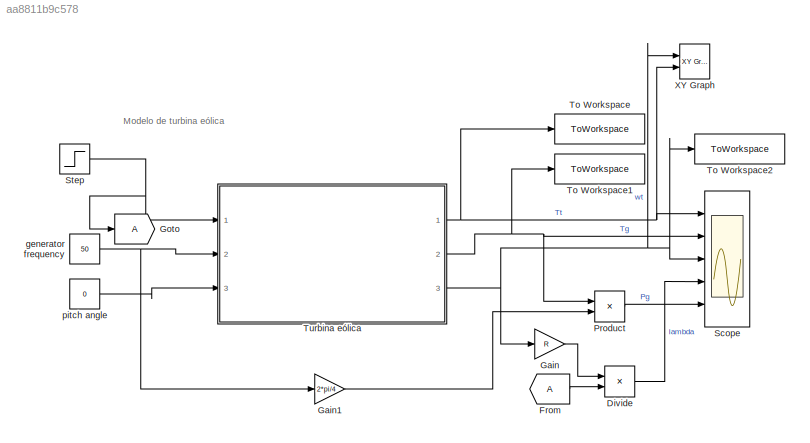
MODEL slx_aa8811b9c578
KIND model
CONFIG AbsTol = auto
CONFIG EnableMultiTasking = off
CONFIG FixedStep = auto
CONFIG MaxStep = auto
CONFIG MinStep = auto
CONFIG RelTol = 1e-3
CONFIG SampleTimeConstraint = Unconstrained
CONFIG Solver = VariableStepAuto
CONFIG SolverName = VariableStepAuto
CONFIG StartTime = 0.0
CONFIG StopTime = 5
BLOCK [Product] Divide
  Inputs = */
  Ports = [2, 1]
BLOCK [From] From
BLOCK [Gain] Gain
  Gain = R
BLOCK [Gain] Gain1
  Gain = 2*pi/4
BLOCK [Goto] Goto
BLOCK [Product] Product
  Ports = [2, 1]
BLOCK [Scope] Scope
  Floating = off
  NumInputPorts = 5
  Ports = [5]
  ScopeSpecificationString = Simulink.scopes.TimeScopeBlockCfg('CurrentConfiguration', extmgr.ConfigurationSet(extmgr.Configuration('Core','General UI',true),extmgr.Configuration('Core','Source UI',true),extmgr.Configuration('Sources','WiredSimulink',true),extmgr.Configuration('Visuals','Time Domain',true,'SerializedDisplays',{struct('MinYLimReal','-22624.94109','MaxYLimReal','203624.4698','YLabelReal','','MinYLimMag','   0.0...<+6095ch>
BLOCK [Step] Step
  After = 5
  Before = 5
  SampleTime = 0
BLOCK [ToWorkspace] To Workspace
  FixptAsFi = on
  MaxDataPoints = inf
  Ports = [1]
  SampleTime = -1
  Save2DSignal = 2-D array (concatenate along first dimension)
  VariableName = Tt
BLOCK [ToWorkspace] To Workspace1
  FixptAsFi = on
  MaxDataPoints = inf
  Ports = [1]
  SampleTime = -1
  Save2DSignal = 2-D array (concatenate along first dimension)
  VariableName = Tg
BLOCK [ToWorkspace] To Workspace2
  FixptAsFi = on
  MaxDataPoints = inf
  Ports = [1]
  SampleTime = -1
  Save2DSignal = 2-D array (concatenate along first dimension)
  VariableName = wt
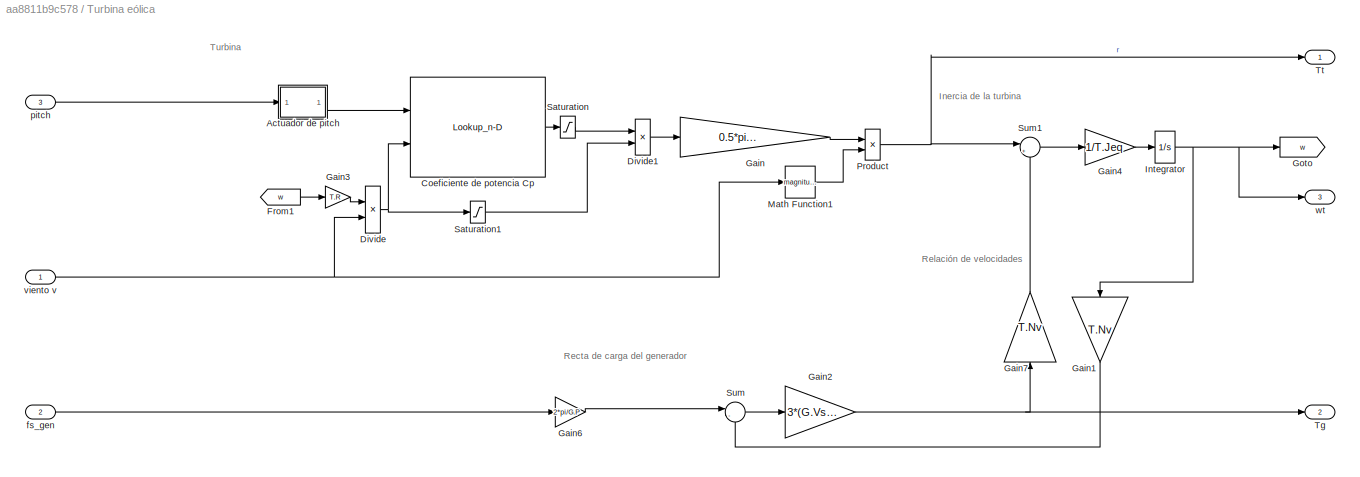
BLOCK [SubSystem] Turbina eólica
  Ports = [3, 3]
  RequestExecContextInheritance = off
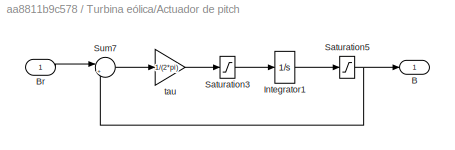
BLOCK [SubSystem] Turbina eólica/Actuador de pitch
  Ports = [1, 1]
  RequestExecContextInheritance = off
BLOCK [Outport] Turbina eólica/Actuador de pitch/B
BLOCK [Inport] Turbina eólica/Actuador de pitch/Br
BLOCK [Integrator] Turbina eólica/Actuador de pitch/Integrator1
  Ports = [1, 1]
BLOCK [Saturate] Turbina eólica/Actuador de pitch/Saturation3
  LowerLimit = -10
  UpperLimit = 10
BLOCK [Saturate] Turbina eólica/Actuador de pitch/Saturation5
  LowerLimit = 0
  UpperLimit = 30
BLOCK [Sum] Turbina eólica/Actuador de pitch/Sum7
  Inputs = |+-
  Ports = [2, 1]
BLOCK [Gain] Turbina eólica/Actuador de pitch/tau
  Gain = 1/(2*pi)
BLOCK [Lookup_n-D] Turbina eólica/Coeficiente de potencia Cp
  BreakpointsForDimension1 = T.pitch
  BreakpointsForDimension2 = T.tsr
  InternalRulePriority = Speed
  InterpMethod = Cubic spline
  OutMax = [0.5]
  OutMin = [0]
  Ports = [2, 1]
  RndMeth = Simplest
  SaturateOnIntegerOverflow = on
  Table = T.Cp
BLOCK [Product] Turbina eólica/Divide
  Inputs = */
  Ports = [2, 1]
BLOCK [Product] Turbina eólica/Divide1
  Inputs = */
  Ports = [2, 1]
BLOCK [From] Turbina eólica/From1
  GotoTag = w
BLOCK [Gain] Turbina eólica/Gain
  Gain = 0.5*pi*T.rho*T.R^3
BLOCK [Gain] Turbina eólica/Gain1
  Gain = T.Nv
  NameLocation = left
BLOCK [Gain] Turbina eólica/Gain2
  Gain = 3*(G.Vsn/G.wsn)^2/G.Rr
BLOCK [Gain] Turbina eólica/Gain3
  Gain = T.R
BLOCK [Gain] Turbina eólica/Gain4
  Gain = 1/T.Jeq
BLOCK [Gain] Turbina eólica/Gain6
  Gain = 2*pi/G.P
BLOCK [Gain] Turbina eólica/Gain7
  Gain = T.Nv
  NameLocation = right
BLOCK [Goto] Turbina eólica/Goto
  GotoTag = w
BLOCK [Integrator] Turbina eólica/Integrator
  InitialCondition = G.wsn/T.Nv
  Ports = [1, 1]
BLOCK [Math] Turbina eólica/Math Function1
  Operator = magnitude^2
  Ports = [1, 1]
  SignedPower = on
BLOCK [Product] Turbina eólica/Product
  Ports = [2, 1]
BLOCK [Saturate] Turbina eólica/Saturation
  LowerLimit = 0
BLOCK [Saturate] Turbina eólica/Saturation1
  LowerLimit = 0.1
  UpperLimit = inf
BLOCK [Sum] Turbina eólica/Sum
  Inputs = |-+
  Ports = [2, 1]
BLOCK [Sum] Turbina eólica/Sum1
  Inputs = |+-
  Ports = [2, 1]
BLOCK [Outport] Turbina eólica/Tg
  Port = 2
BLOCK [Outport] Turbina eólica/Tt
BLOCK [Inport] Turbina eólica/fs_gen
  Port = 2
BLOCK [Inport] Turbina eólica/pitch
  Port = 3
BLOCK [Inport] Turbina eólica/viento v
BLOCK [Outport] Turbina eólica/wt
  Port = 3
BLOCK [Reference] XY Graph  REF=simulink/Sinks/XY Graph
  Ports = [2]
  SourceBlock = simulink/Sinks/XY Graph
  SourceProductBaseCode = SL
  SourceType = XY scope.
BLOCK [Constant] generator frequency
  Value = 50
BLOCK [Constant] pitch angle
  Value = 0
ANNOTATION (root): Modelo de turbina eólica
ANNOTATION Turbina eólica: Inercia de la turbina
ANNOTATION Turbina eólica: Recta de carga del generador
ANNOTATION Turbina eólica: Relación de velocidades
ANNOTATION Turbina eólica: Turbina
LINE Divide:1 -> Scope:4
LINE From:1 -> Divide:2
LINE Gain1:1 -> Product:2
LINE Gain:1 -> Divide:1
LINE Product:1 -> Scope:5
NET Step:1 -> Goto:1, Turbina eólica:1
LINE Turbina eólica/Actuador de pitch/Br:1 -> Turbina eólica/Actuador de pitch/Sum7:1
LINE Turbina eólica/Actuador de pitch/Integrator1:1 -> Turbina eólica/Actuador de pitch/Saturation5:1
LINE Turbina eólica/Actuador de pitch/Saturation3:1 -> Turbina eólica/Actuador de pitch/Integrator1:1
NET Turbina eólica/Actuador de pitch/Saturation5:1 -> Turbina eólica/Actuador de pitch/B:1, Turbina eólica/Actuador de pitch/Sum7:2
LINE Turbina eólica/Actuador de pitch/Sum7:1 -> Turbina eólica/Actuador de pitch/tau:1
LINE Turbina eólica/Actuador de pitch/tau:1 -> Turbina eólica/Actuador de pitch/Saturation3:1
LINE Turbina eólica/Actuador de pitch:1 -> Turbina eólica/Coeficiente de potencia Cp:1
LINE Turbina eólica/Coeficiente de potencia Cp:1 -> Turbina eólica/Saturation:1
LINE Turbina eólica/Divide1:1 -> Turbina eólica/Gain:1
NET Turbina eólica/Divide:1 -> Turbina eólica/Coeficiente de potencia Cp:2, Turbina eólica/Saturation1:1
LINE Turbina eólica/From1:1 -> Turbina eólica/Gain3:1
LINE Turbina eólica/Gain1:1 -> Turbina eólica/Sum:2
NET Turbina eólica/Gain2:1 -> Turbina eólica/Gain7:1, Turbina eólica/Tg:1
LINE Turbina eólica/Gain3:1 -> Turbina eólica/Divide:1
LINE Turbina eólica/Gain4:1 -> Turbina eólica/Integrator:1
LINE Turbina eólica/Gain6:1 -> Turbina eólica/Sum:1
LINE Turbina eólica/Gain7:1 -> Turbina eólica/Sum1:2
LINE Turbina eólica/Gain:1 -> Turbina eólica/Product:1
NET Turbina eólica/Integrator:1 -> Turbina eólica/Gain1:1, Turbina eólica/Goto:1, Turbina eólica/wt:1
LINE Turbina eólica/Math Function1:1 -> Turbina eólica/Product:2
NET Turbina eólica/Product:1 -> Turbina eólica/Sum1:1, Turbina eólica/Tt:1
LINE Turbina eólica/Saturation1:1 -> Turbina eólica/Divide1:2
LINE Turbina eólica/Saturation:1 -> Turbina eólica/Divide1:1
LINE Turbina eólica/Sum1:1 -> Turbina eólica/Gain4:1
LINE Turbina eólica/Sum:1 -> Turbina eólica/Gain2:1
LINE Turbina eólica/fs_gen:1 -> Turbina eólica/Gain6:1
LINE Turbina eólica/pitch:1 -> Turbina eólica/Actuador de pitch:1
NET Turbina eólica/viento v:1 -> Turbina eólica/Divide:2, Turbina eólica/Math Function1:1
NET Turbina eólica:1 -> Scope:1, To Workspace:1, XY Graph:2
NET Turbina eólica:2 -> Product:1, Scope:2, To Workspace1:1
NET Turbina eólica:3 -> Gain:1, Scope:3, To Workspace2:1, XY Graph:1
NET generator frequency:1 -> Gain1:1, Turbina eólica:2
LINE pitch angle:1 -> Turbina eólica:3
note: NET lines group one-source signal fan-out (src -> all destinations, sorted); 1:1 wires keep LINE
